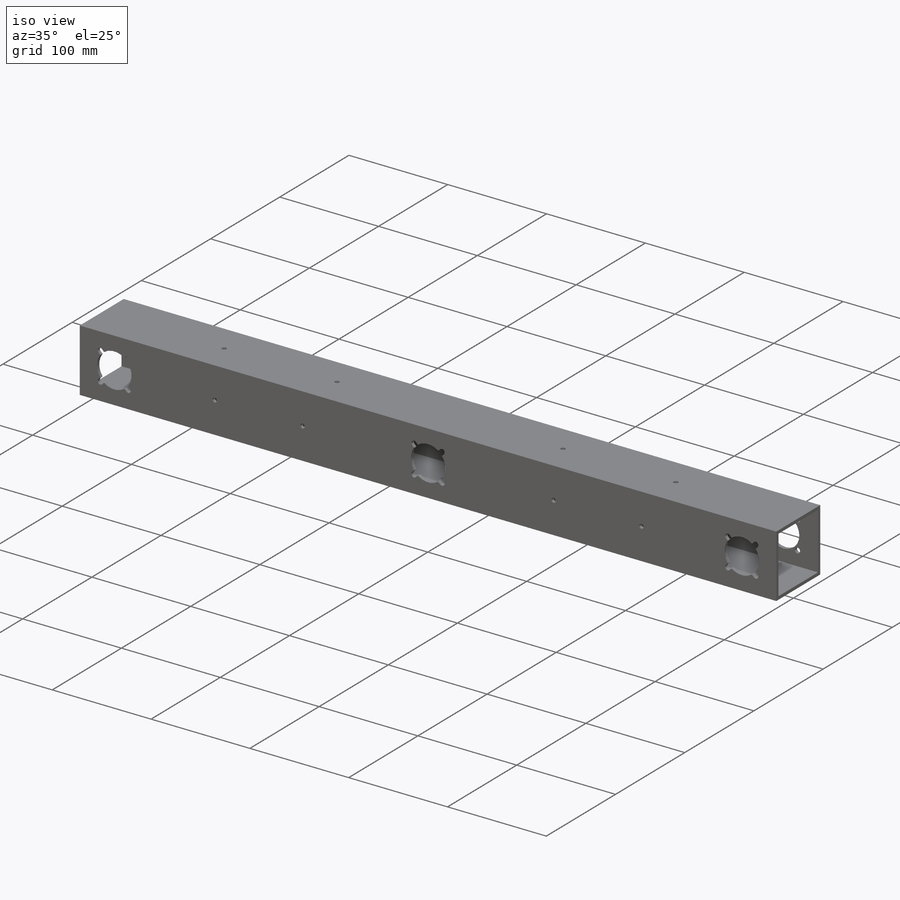
[diagram: iso view]
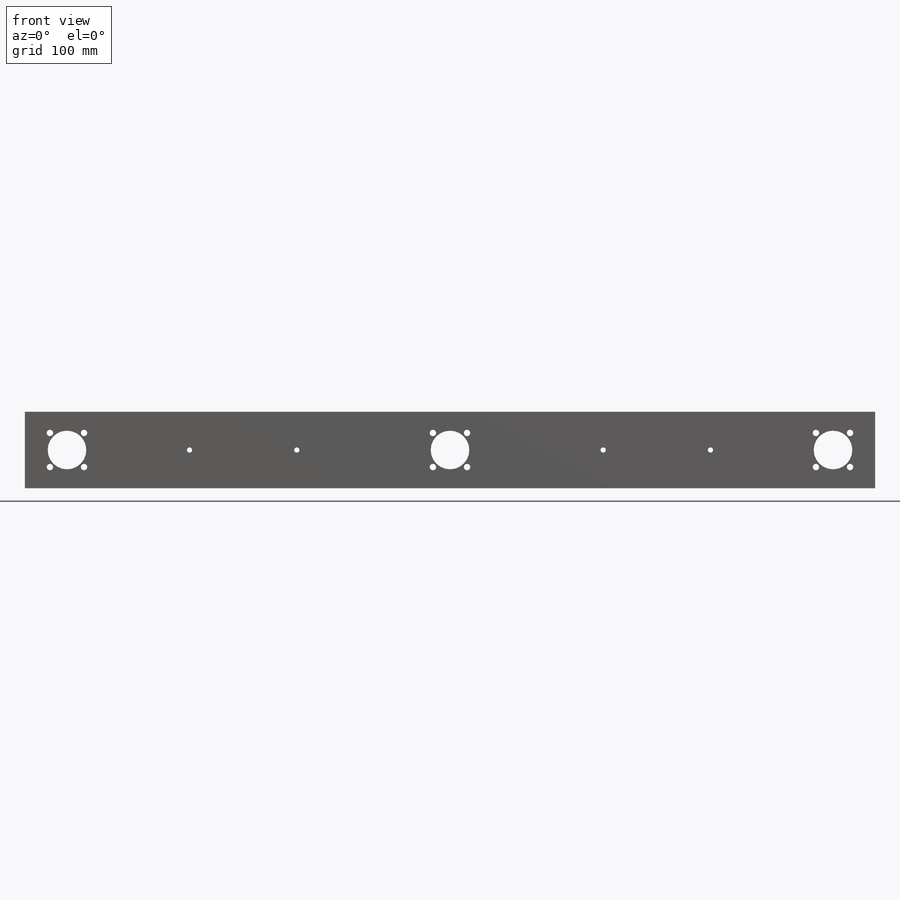
[diagram: front view]
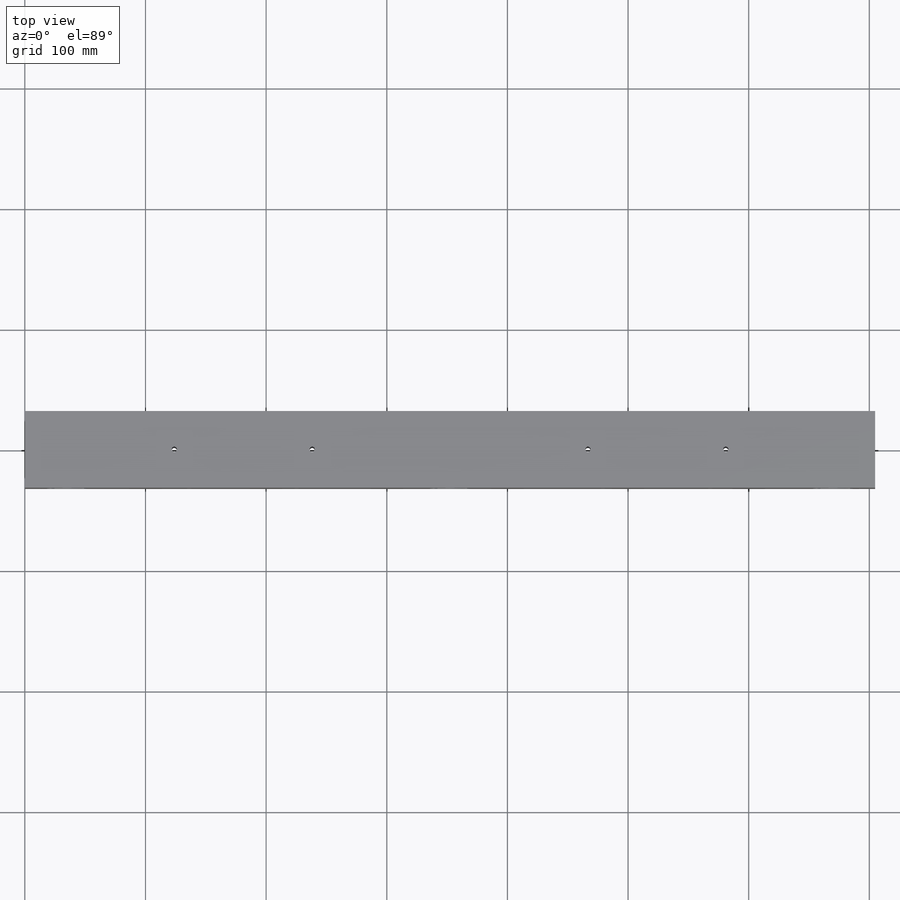
[diagram: top view]
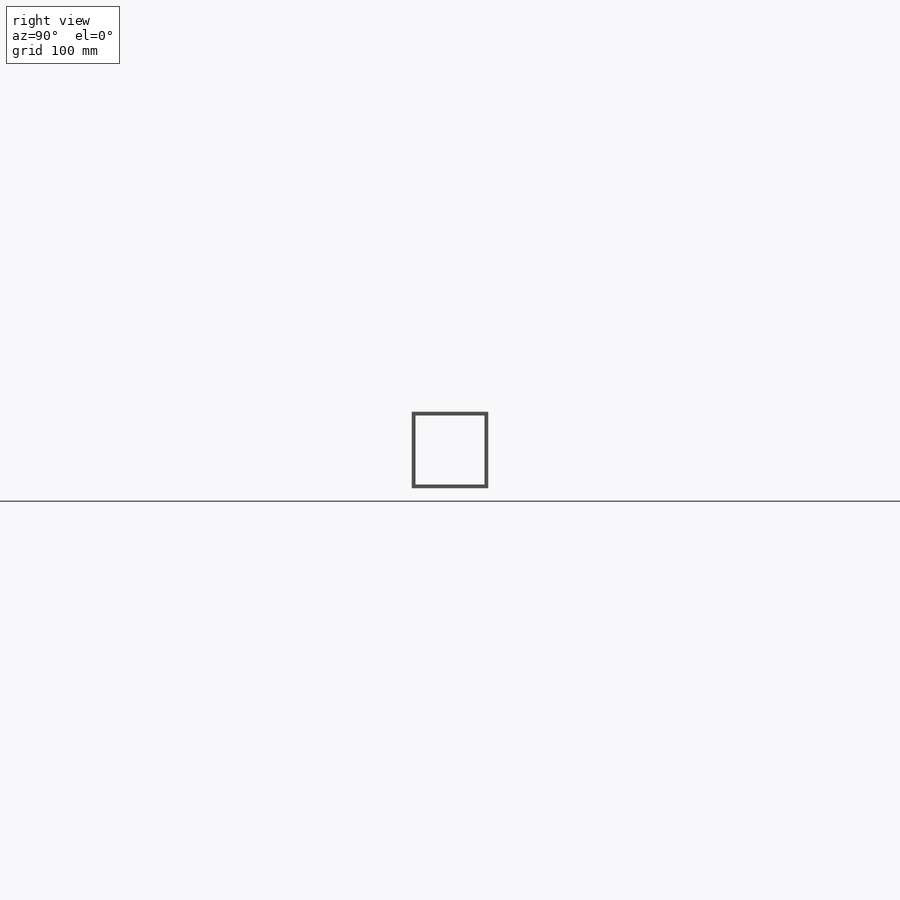
[diagram: right view]
SOLIDWORKS PART (.sldprt)
format: sldprt  version: not decoded by parser v0  size: 403,968 bytes
history: native  units: mm
features: sketch x9, cut_extrude x8, material x1, extrude x1 (+12 scaffold rows collapsed)
feature tree (31):
  scaffold x12  (default folders/planes/origin — collapsed)
  material  "6061-T6 (SS)"
  sketch  "Sketch1"  dims[D1=63.5mm]
  extrude  "Boss-Extrude1"  Depth=704.85mm
  sketch  "Sketch2"  dims[D1=3.175mm]
  cut_extrude  "Cut-Extrude1"  [1 undecoded]
  sketch  "Sketch3"  dims[D1=34.925mm D2=317.5mm D3=317.5mm]
  cut_extrude  "Cut-Extrude2"  [1 undecoded]
  sketch  "Sketch8"  dims[D1=4.3053mm D2=114.3mm D3=228.6mm]
  cut_extrude  "Cut-Extrude6"  [1 undecoded]
  sketch  "Sketch10"  dims[D1=4.3053mm D2=127.0mm D3=215.9mm]
  cut_extrude  "Cut-Extrude7"  [1 undecoded]
  sketch  "Sketch13"  dims[D3=32.0mm D1=317.5mm D2=317.5mm]
  cut_extrude  "Cut-Extrude9"  [1 undecoded]
  sketch  "Sketch14"  dims[c1.D4=5.25mm c1.D1=~16.972075mm c2.D1=45.0deg c2.D2=~24.002139mm c3.D2=45.0deg c3.D3=~16.972075mm c4.D3=45.0deg c4.D5=20.0mm c4.D6=4.0 c4.D7=4.0 c4.D8=4.0]
  cut_extrude  "Cut-Extrude10"  [1 undecoded]
  sketch  "Sketch15"  dims[c1.D2=5.0mm c1.D3=5.25mm c1.D7=17.4625mm c1.D1=20.0mm c2.D2=~14.142136mm c3.D2=45.0deg c3.D4=~3.712311mm c4.D4=90.0deg c4.D5=5.25mm c4.D8=~2.735925mm c4.D6=4.0]
  cut_extrude  "Cut-Extrude11"  [1 undecoded]
  sketch  "Sketch17"  dims[D1=50.8mm D2=19.05mm]
  cut_extrude  "Cut-Extrude13"  [1 undecoded]
decode coverage: 10 of 18 modeling features carry decoded parameters
note: ~ marks probable driven/reference dimensions
note: 8 parameter values undecoded
summary: no parameter record found for 8 features
note: suppression state not decoded; provenance and decode notes live in map.json
